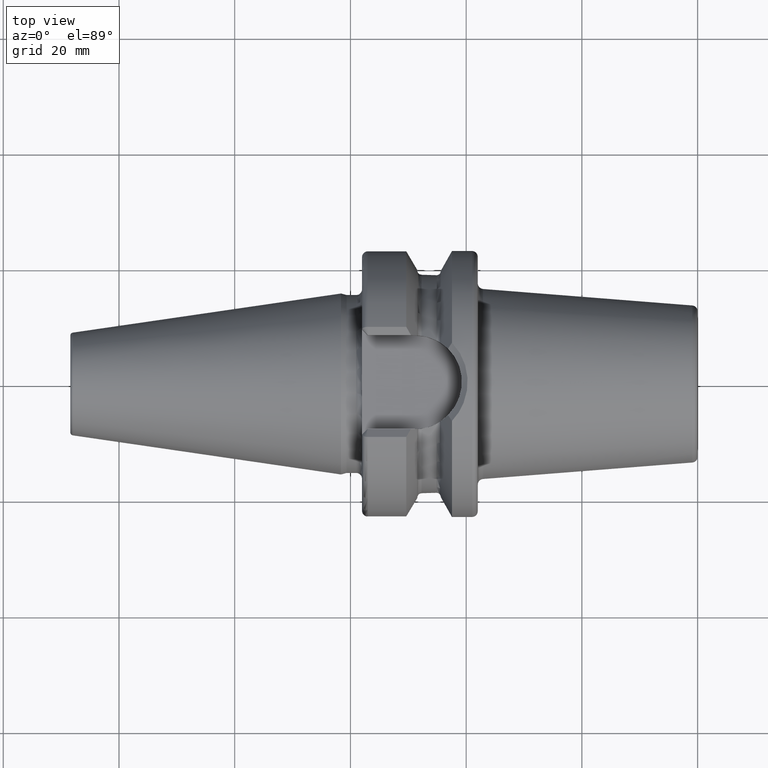
[diagram: clean part render]
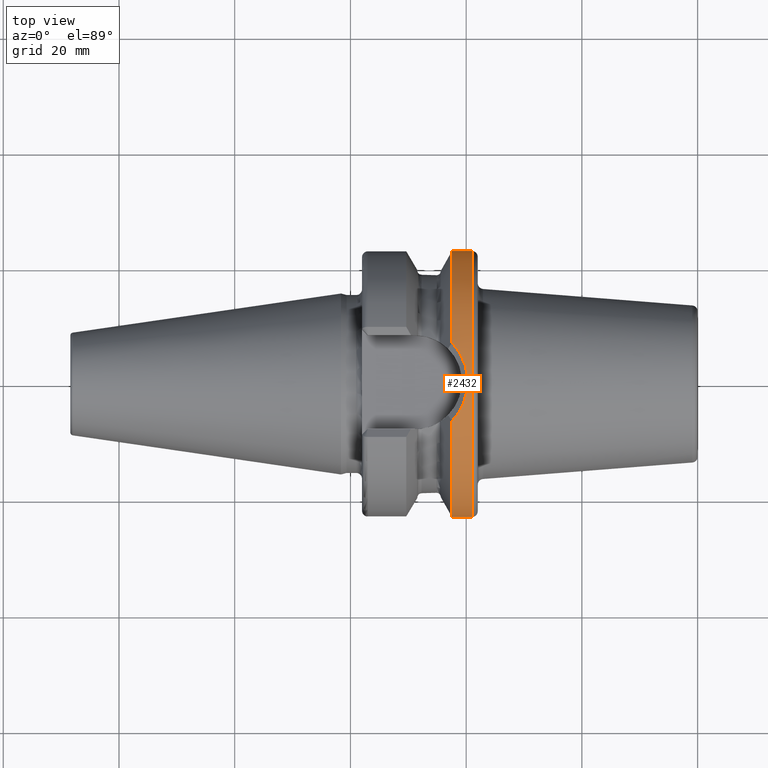
[diagram: same view with one face highlighted and labeled with its STEP entity id]
A machine part, top view. The second image highlights one B-rep face of the part: STEP entity #2432.
In plain terms, the highlighted cylindrical surface (partial cylindrical patch) has radius 22.99 mm, axis along (1, 0, 0).
Its self-contained STEP definition (entity closure, byte-faithful):
#231=DIRECTION('',(-1.E0,0.E0,0.E0));
#232=VECTOR('',#231,3.450924158743E0);
#233=CARTESIAN_POINT('',(2.1E1,-2.299E1,0.E0));
#234=LINE('',#233,#232);
#240=DIRECTION('',(-1.E0,0.E0,0.E0));
#241=VECTOR('',#240,3.450924158743E0);
#242=CARTESIAN_POINT('',(2.1E1,2.299E1,0.E0));
#243=LINE('',#242,#241);
#773=CARTESIAN_POINT('',(1.754907584126E1,0.E0,0.E0));
#774=DIRECTION('',(1.E0,0.E0,0.E0));
#775=DIRECTION('',(0.E0,1.E0,0.E0));
#776=AXIS2_PLACEMENT_3D('',#773,#774,#775);
#778=CARTESIAN_POINT('',(2.1E1,0.E0,0.E0));
#779=DIRECTION('',(1.E0,0.E0,0.E0));
#780=DIRECTION('',(0.E0,1.E0,0.E0));
#781=AXIS2_PLACEMENT_3D('',#778,#779,#780);
#783=CARTESIAN_POINT('',(1.754907584126E1,0.E0,0.E0));
#784=DIRECTION('',(1.E0,0.E0,0.E0));
#785=DIRECTION('',(0.E0,-2.941213407634E-1,9.557680874080E-1));
#786=AXIS2_PLACEMENT_3D('',#783,#784,#785);
#788=CARTESIAN_POINT('',(1.754907584126E1,6.761871244710E0,2.197310167614E1));
#789=CARTESIAN_POINT('',(1.768866712313E1,6.617664565275E0,2.201749422993E1));
#790=CARTESIAN_POINT('',(1.821021271727E1,6.042978757576E0,2.218832716973E1));
#791=CARTESIAN_POINT('',(1.898952564952E1,4.933496438630E0,2.247191474384E1));
#792=CARTESIAN_POINT('',(1.971382740307E1,3.367711516436E0,2.276168278345E1));
#793=CARTESIAN_POINT('',(2.014981507134E1,1.713556085137E0,2.294641835617E1));
#794=CARTESIAN_POINT('',(2.029627211771E1,4.350382510710E-2,2.301013849182E1));
#795=CARTESIAN_POINT('',(2.016452454559E1,-1.626373731246E0,2.295278037961E1));
#796=CARTESIAN_POINT('',(1.974352192165E1,-3.283871780500E0,2.277402245506E1));
#797=CARTESIAN_POINT('',(1.903395600771E1,-4.855335925356E0,2.248907028024E1));
#798=CARTESIAN_POINT('',(1.824850274013E1,-5.996433630648E0,2.220149296988E1));
#799=CARTESIAN_POINT('',(1.770930838653E1,-6.596292284182E0,2.202406983618E1));
#800=CARTESIAN_POINT('',(1.754907584126E1,-6.761849624151E0,2.197310832951E1));
#1194=CARTESIAN_POINT('',(1.754907584126E1,2.299E1,0.E0));
#1195=CARTESIAN_POINT('',(1.754907584126E1,6.761871244710E0,2.197310167614E1));
#1196=VERTEX_POINT('',#1194);
#1197=VERTEX_POINT('',#1195);
#1198=CARTESIAN_POINT('',(1.754907584126E1,-2.299E1,0.E0));
#1200=VERTEX_POINT('',#1198);
#1202=CARTESIAN_POINT('',(2.1E1,2.299E1,0.E0));
#1203=VERTEX_POINT('',#1202);
#1204=CARTESIAN_POINT('',(2.1E1,-2.299E1,0.E0));
#1205=VERTEX_POINT('',#1204);
#1206=CARTESIAN_POINT('',(1.754907584126E1,-6.761849624151E0,2.197310832951E1));
#1207=VERTEX_POINT('',#1206);
#2417=CARTESIAN_POINT('',(-5.192E1,0.E0,0.E0));
#2418=DIRECTION('',(1.E0,0.E0,0.E0));
#2419=DIRECTION('',(0.E0,-1.E0,0.E0));
#2420=AXIS2_PLACEMENT_3D('',#2417,#2418,#2419);
#2421=CYLINDRICAL_SURFACE('',#2420,2.299E1);
#2422=ORIENTED_EDGE('',*,*,#2335,.F.);
#2423=ORIENTED_EDGE('',*,*,#1694,.F.);
#2425=ORIENTED_EDGE('',*,*,#2424,.T.);
#2426=ORIENTED_EDGE('',*,*,#1690,.T.);
#2427=ORIENTED_EDGE('',*,*,#2348,.F.);
#2429=ORIENTED_EDGE('',*,*,#2428,.F.);
#2430=EDGE_LOOP('',(#2422,#2423,#2425,#2426,#2427,#2429));
#2431=FACE_OUTER_BOUND('',#2430,.F.);
#2432=ADVANCED_FACE('',(#2431),#2421,.T.);
#777=CIRCLE('',#776,2.299E1);
#782=CIRCLE('',#781,2.299E1);
#787=CIRCLE('',#786,2.299E1);
#801=B_SPLINE_CURVE_WITH_KNOTS('',3,(#788,#789,#790,#791,#792,#793,#794,#795,
#796,#797,#798,#799,#800),.UNSPECIFIED.,.F.,.F.,(4,1,1,1,1,1,1,1,1,1,4),(0.E0,
3.998498018950E-2,1.542527032415E-1,2.685204262936E-1,3.827881493456E-1,
4.970558723976E-1,6.113235954496E-1,7.255913185017E-1,8.398590415537E-1,
9.541267646057E-1,1.E0),.UNSPECIFIED.);
#1690=EDGE_CURVE('',#1205,#1200,#234,.T.);
#1694=EDGE_CURVE('',#1203,#1196,#243,.T.);
#2335=EDGE_CURVE('',#1196,#1197,#777,.T.);
#2348=EDGE_CURVE('',#1207,#1200,#787,.T.);
#2424=EDGE_CURVE('',#1203,#1205,#782,.T.);
#2428=EDGE_CURVE('',#1197,#1207,#801,.T.);